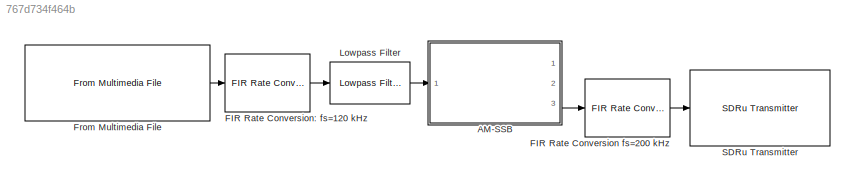
MODEL slx_767d734f464b
KIND model
CONFIG AbsTol = auto
CONFIG EnableMultiTasking = off
CONFIG FixedStep = auto
CONFIG MaxStep = auto
CONFIG MinStep = auto
CONFIG RelTol = 1e-3
CONFIG SampleTimeConstraint = Unconstrained
CONFIG Solver = VariableStepAuto
CONFIG SolverName = VariableStepAuto
CONFIG StartTime = 0.0
CONFIG StopTime = inf
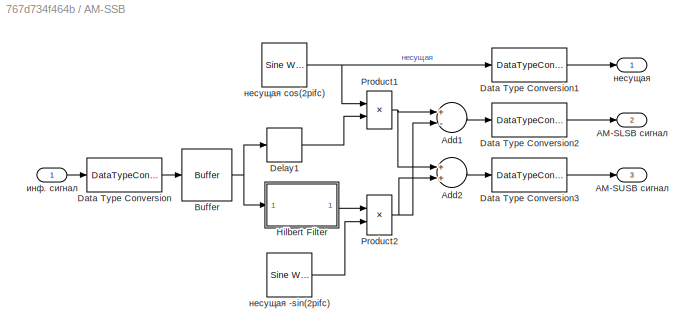
BLOCK [SubSystem]  AM-SSB
  Ports = [1, 3]
  RequestExecContextInheritance = off
BLOCK [Outport]  AM-SSB/AM-SLSB сигнал
  IconDisplay = Port number
  Port = 2
BLOCK [Outport]  AM-SSB/AM-SUSB сигнал
  IconDisplay = Port number
  Port = 3
BLOCK [Sum]  AM-SSB/Add1
  InputSameDT = off
  Inputs = +-
  OutDataTypeStr = Inherit: Inherit via internal rule
  Ports = [2, 1]
  SaturateOnIntegerOverflow = off
BLOCK [Sum]  AM-SSB/Add2
  InputSameDT = off
  OutDataTypeStr = Inherit: Inherit via internal rule
  Ports = [2, 1]
  SaturateOnIntegerOverflow = off
BLOCK [Buffer]  AM-SSB/Buffer
  N = frame_size
  OutputFrames = off
BLOCK [DataTypeConversion]  AM-SSB/Data Type Conversion
  OutDataTypeStr = double
  RndMeth = Floor
  SaturateOnIntegerOverflow = off
BLOCK [DataTypeConversion]  AM-SSB/Data Type Conversion1
  RndMeth = Floor
  SaturateOnIntegerOverflow = off
BLOCK [DataTypeConversion]  AM-SSB/Data Type Conversion2
  RndMeth = Floor
  SaturateOnIntegerOverflow = off
BLOCK [DataTypeConversion]  AM-SSB/Data Type Conversion3
  RndMeth = Floor
  SaturateOnIntegerOverflow = off
BLOCK [Delay]  AM-SSB/Delay1
  DelayLength = 100
  InitialCondition = 0
  InputPortMap = u0
  InputProcessing = Columns as channels (frame based)
  Ports = [1, 1]
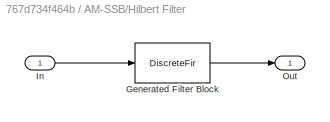
BLOCK [SubSystem]  AM-SSB/Hilbert Filter
  CopyFcn = fdesignblkfcn(gcbh, {'CopyFcn'});
  DialogController = fdesignblkfcn
  InitFcn = fdesignblkfcn(gcbh, {'InitFcn'});
  Ports = [1, 1]
  RequestExecContextInheritance = off
  UserDataPersistent = on
BLOCK [DiscreteFir]  AM-SSB/Hilbert Filter/Generated Filter Block
  Coefficients = [4.6653290912134353e-16 -8.3766156093727947e-05 2.3287802582575801e-15 -6.5992112024168155e-05 -6.2242128018656376e-16 -9.1525954819809117e-05 -1.9677454970641158e-15 -0.00012313243456045384 -4.0806315018380616e-16 -0.00016173066502496637 1.2958052328058529e-16 -0.00020842367058682403 1.9678295181986041e-15 -0.00026438321164375523 -1.7328150234907503e-15 -0.00033071001178729652 3.1411949301283626e...<+4163ch>
  InputPortMap = u0
  InputProcessing = Columns as channels (frame based)
  OutputPortMap = o0
  Ports = [1, 1]
  Tag = BlockMethodSubSystem
BLOCK [Inport]  AM-SSB/Hilbert Filter/In
  IconDisplay = Port number
BLOCK [Outport]  AM-SSB/Hilbert Filter/Out
  IconDisplay = Port number
BLOCK [Product]  AM-SSB/Product1
  InputSameDT = off
  OutDataTypeStr = Inherit: Inherit via internal rule
  Ports = [2, 1]
  RndMeth = Floor
  SaturateOnIntegerOverflow = off
BLOCK [Product]  AM-SSB/Product2
  InputSameDT = off
  OutDataTypeStr = Inherit: Inherit via internal rule
  Ports = [2, 1]
  RndMeth = Floor
  SaturateOnIntegerOverflow = off
BLOCK [Inport]  AM-SSB/инф. сигнал
  IconDisplay = Port number
BLOCK [Outport]  AM-SSB/несущая
  IconDisplay = Port number
BLOCK [Reference]  AM-SSB/несущая -sin(2pifc)  REF=dspsrcs4/Sine Wave
  Ports = [0, 1]
  SourceBlock = dspsrcs4/Sine Wave
  SourceProductBaseCode = DS
  SourceProductName = DSP System Toolbox
  SourceType = Sine Wave
BLOCK [Reference]  AM-SSB/несущая cos(2pifc)  REF=dspsrcs4/Sine Wave
  Ports = [0, 1]
  SourceBlock = dspsrcs4/Sine Wave
  SourceProductBaseCode = DS
  SourceProductName = DSP System Toolbox
  SourceType = Sine Wave
BLOCK [Reference] FIR Rate Conversion fs=200 kHz  REF=dspmlti4/FIR Rate
Conversion
  Ports = [1, 1]
  SourceBlock = dspmlti4/FIR Rate\nConversion
  SourceProductBaseCode = DS
  SourceProductName = DSP System Toolbox
  SourceType = FIR Rate Conversion
BLOCK [Reference] FIR Rate Conversion: fs=120 kHz  REF=dspmlti4/FIR Rate
Conversion
  Ports = [1, 1]
  SourceBlock = dspmlti4/FIR Rate\nConversion
  SourceProductBaseCode = DS
  SourceProductName = DSP System Toolbox
  SourceType = FIR Rate Conversion
BLOCK [Reference] From Multimedia File  REF=dspvision/From Multimedia File
  Ports = [0, 1]
  SourceBlock = dspvision/From Multimedia File
  SourceProductBaseCode = VP
  SourceProductName = Computer Vision System Toolbox
  SourceType = From Multimedia File
BLOCK [Reference] Lowpass Filter  REF=dspfdesign/Lowpass Filter
  Ports = [1, 1]
  SourceBlock = dspfdesign/Lowpass Filter
  SourceProductBaseCode = DS
  SourceProductName = DSP System Toolbox
  SourceType = dsp.LowpassFilter
BLOCK [Reference] SDRu Transmitter  REF=commsdrhw_v2/SDRu Transmitter
  Ports = [1]
  SourceBlock = commsdrhw_v2/SDRu Transmitter
  SourceProductBaseCode = USRP
  SourceProductName = Communications System Toolbox Support Package for USRP(R) Radio
  SourceType = SDRu Transmitter
LINE  AM-SSB/Add1:1 ->  AM-SSB/Data Type Conversion2:1
LINE  AM-SSB/Add2:1 ->  AM-SSB/Data Type Conversion3:1
NET  AM-SSB/Buffer:1 ->  AM-SSB/Delay1:1,  AM-SSB/Hilbert Filter:1
LINE  AM-SSB/Data Type Conversion1:1 ->  AM-SSB/несущая:1
LINE  AM-SSB/Data Type Conversion2:1 ->  AM-SSB/AM-SLSB сигнал:1
LINE  AM-SSB/Data Type Conversion3:1 ->  AM-SSB/AM-SUSB сигнал:1
LINE  AM-SSB/Data Type Conversion:1 ->  AM-SSB/Buffer:1
LINE  AM-SSB/Delay1:1 ->  AM-SSB/Product1:2
LINE  AM-SSB/Hilbert Filter:1 ->  AM-SSB/Product2:1
NET  AM-SSB/Product1:1 ->  AM-SSB/Add1:1,  AM-SSB/Add2:1
NET  AM-SSB/Product2:1 ->  AM-SSB/Add1:2,  AM-SSB/Add2:2
LINE  AM-SSB/инф. сигнал:1 ->  AM-SSB/Data Type Conversion:1
LINE  AM-SSB/несущая -sin(2pifc):1 ->  AM-SSB/Product2:2
NET  AM-SSB/несущая cos(2pifc):1 ->  AM-SSB/Data Type Conversion1:1,  AM-SSB/Product1:1
LINE  AM-SSB:3 -> FIR Rate Conversion fs=200 kHz:1
LINE FIR Rate Conversion fs=200 kHz:1 -> SDRu Transmitter:1
LINE FIR Rate Conversion: fs=120 kHz:1 -> Lowpass Filter:1
LINE From Multimedia File:1 -> FIR Rate Conversion: fs=120 kHz:1
LINE Lowpass Filter:1 ->  AM-SSB:1
note: NET lines group one-source signal fan-out (src -> all destinations, sorted); 1:1 wires keep LINE
